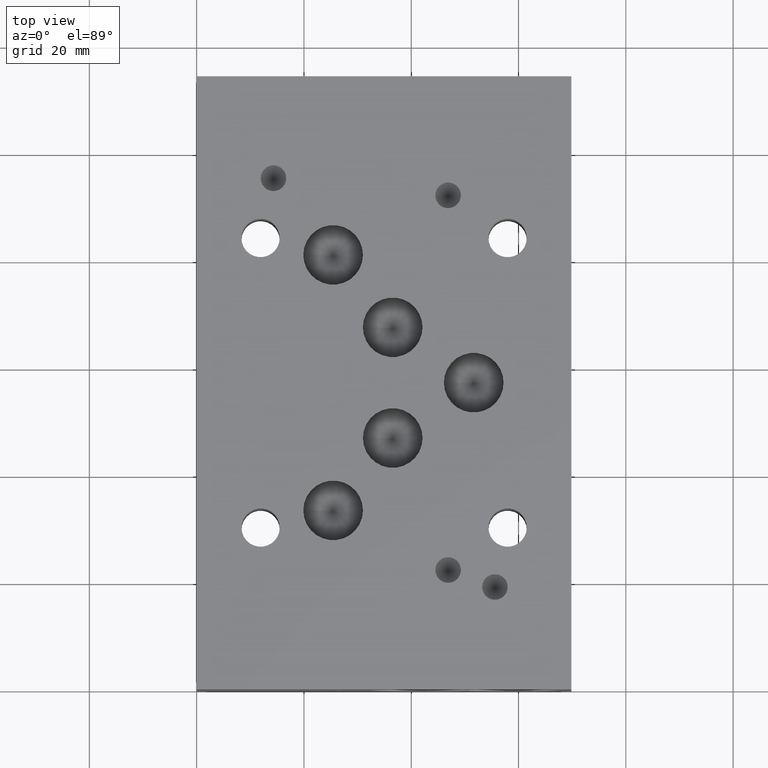
[diagram: clean part render]
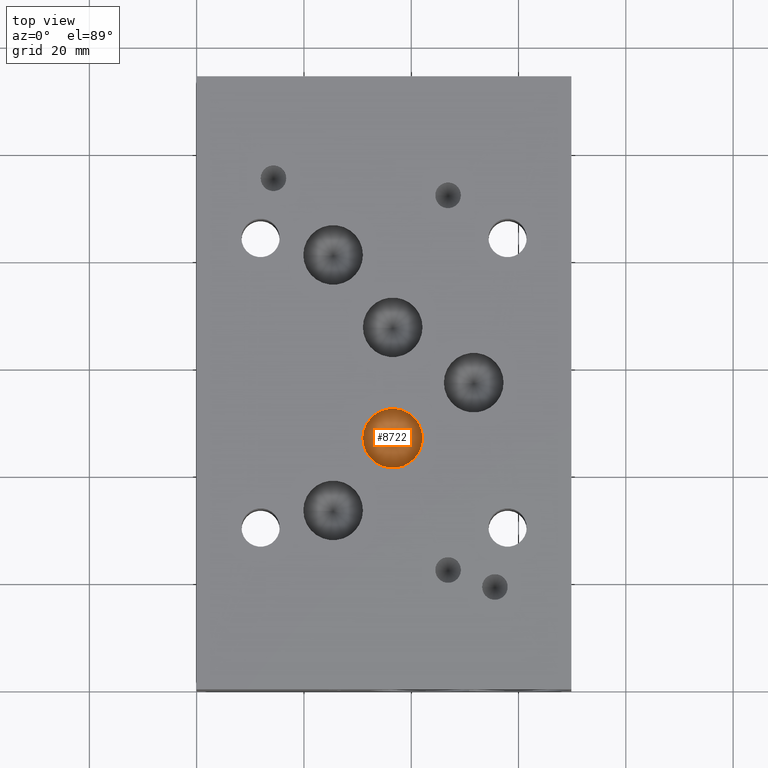
[diagram: same view with one face highlighted and labeled with its STEP entity id]
A machine part, top view. The second image highlights one B-rep face of the part: STEP entity #8722.
In plain terms, the highlighted conical surface has half-angle 60 deg.
Its self-contained STEP definition (entity closure, byte-faithful):
#31=CONICAL_SURFACE('',#9222,2.778125,1.0471975511966);
#131=CIRCLE('',#9223,5.55625);
#896=FACE_OUTER_BOUND('',#1409,.T.);
#1409=EDGE_LOOP('',(#7498,#7499,#7500));
#2370=LINE('',#14428,#3307);
#3307=VECTOR('',#11102,2.778125);
#4094=VERTEX_POINT('',#14425);
#4095=VERTEX_POINT('',#14427);
#5253=EDGE_CURVE('',#4094,#4094,#131,.T.);
#5254=EDGE_CURVE('',#4094,#4095,#2370,.T.);
#7498=ORIENTED_EDGE('',*,*,#5253,.T.);
#7499=ORIENTED_EDGE('',*,*,#5254,.T.);
#7500=ORIENTED_EDGE('',*,*,#5254,.F.);
#8722=ADVANCED_FACE('',(#896),#31,.F.);
#9222=AXIS2_PLACEMENT_3D('',#14424,#11098,#11099);
#9223=AXIS2_PLACEMENT_3D('',#14426,#11100,#11101);
#11098=DIRECTION('center_axis',(0.,0.,1.));
#11099=DIRECTION('ref_axis',(1.,0.,0.));
#11100=DIRECTION('center_axis',(0.,0.,1.));
#11101=DIRECTION('ref_axis',(1.,0.,0.));
#11102=DIRECTION('',(0.866025403784439,1.06057523872491E-16,-0.5));
#14424=CARTESIAN_POINT('Origin',(36.54298,46.84522,20.5881487834076));
#14425=CARTESIAN_POINT('',(30.98673,46.84522,22.1921));
#14426=CARTESIAN_POINT('Origin',(36.54298,46.84522,22.1921));
#14427=CARTESIAN_POINT('',(36.54298,46.84522,18.9841975668151));
#14428=CARTESIAN_POINT('',(33.764855,46.84522,20.5881487834076));